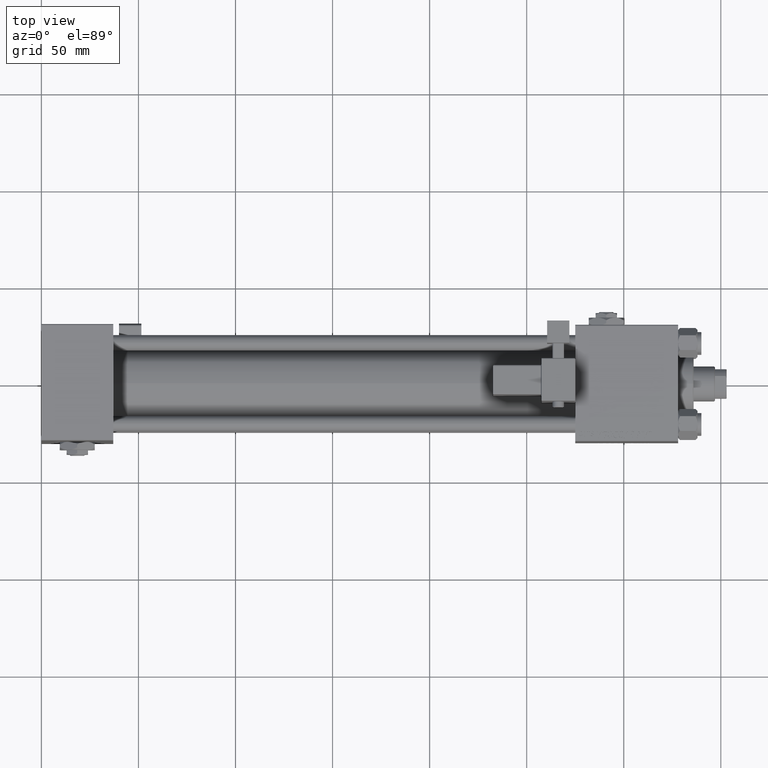
[diagram: clean part render]
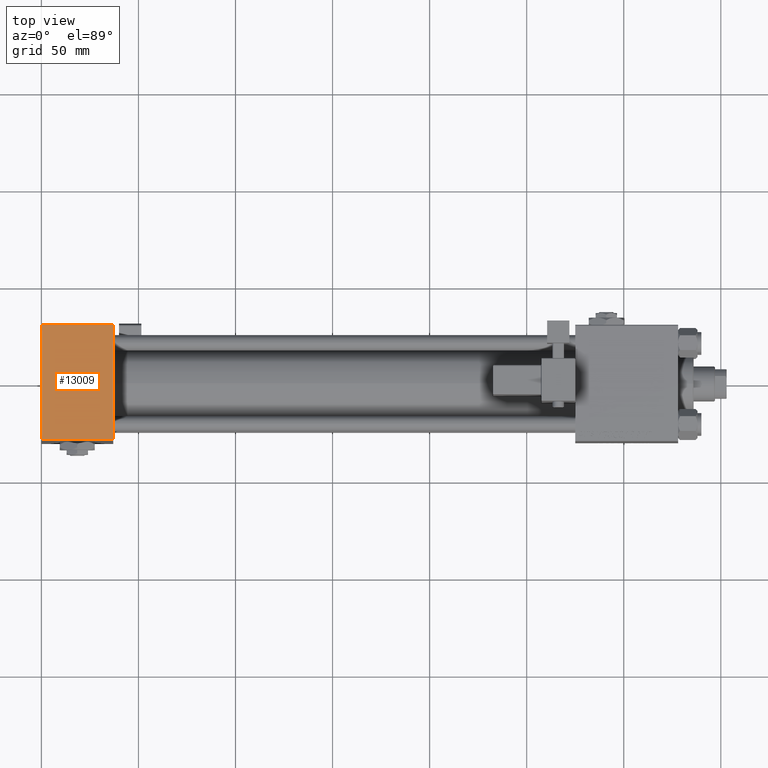
[diagram: same view with one face highlighted and labeled with its STEP entity id]
A machine part, top view. The second image highlights one B-rep face of the part: STEP entity #13009.
In plain terms, the highlighted planar face has unit normal (0, 0, -1).
Its self-contained STEP definition (entity closure, byte-faithful):
#951 = DIRECTION ( 'NONE',  ( 0.000000000000000000, -1.000000000000000000, -1.156482317317871478E-16 ) ) ;
#2306 = CARTESIAN_POINT ( 'NONE',  ( 37.00000000000000000, -29.50000000000000711, 54.50000000000000711 ) ) ;
#5377 = CARTESIAN_POINT ( 'NONE',  ( 0.000000000000000000, -29.50000000000000711, 54.50000000000000711 ) ) ;
#7962 = ORIENTED_EDGE ( 'NONE', *, *, #31420, .T. ) ;
#9850 = AXIS2_PLACEMENT_3D ( 'NONE', #14264, #26840, #47294 ) ;
#10174 = PLANE ( 'NONE',  #9850 ) ;
#13009 = ADVANCED_FACE ( 'NONE', ( #43734 ), #10174, .F. ) ;
#13513 = LINE ( 'NONE', #16809, #33509 ) ;
#14030 = VERTEX_POINT ( 'NONE', #28959 ) ;
#14264 = CARTESIAN_POINT ( 'NONE',  ( 37.00000000000000000, 30.00000000000000355, 54.50000000000001421 ) ) ;
#14610 = LINE ( 'NONE', #28003, #25199 ) ;
#15139 = VECTOR ( 'NONE', #48053, 1000.000000000000000 ) ;
#16809 = CARTESIAN_POINT ( 'NONE',  ( 37.00000000000000000, 30.00000000000000355, 54.50000000000001421 ) ) ;
#18435 = VERTEX_POINT ( 'NONE', #5377 ) ;
#19932 = ORIENTED_EDGE ( 'NONE', *, *, #44273, .T. ) ;
#22236 = EDGE_CURVE ( 'NONE', #18435, #22642, #32489, .T. ) ;
#22283 = VECTOR ( 'NONE', #23205, 1000.000000000000000 ) ;
#22642 = VERTEX_POINT ( 'NONE', #2306 ) ;
#23205 = DIRECTION ( 'NONE',  ( 1.000000000000000000, 0.000000000000000000, 0.000000000000000000 ) ) ;
#25199 = VECTOR ( 'NONE', #27174, 1000.000000000000000 ) ;
#26840 = DIRECTION ( 'NONE',  ( 0.000000000000000000, 1.156482317317871478E-16, -1.000000000000000000 ) ) ;
#27174 = DIRECTION ( 'NONE',  ( 0.000000000000000000, -1.000000000000000000, -1.156482317317871478E-16 ) ) ;
#28003 = CARTESIAN_POINT ( 'NONE',  ( 0.000000000000000000, 30.00000000000000355, 54.50000000000001421 ) ) ;
#28959 = CARTESIAN_POINT ( 'NONE',  ( 37.00000000000000000, 29.50000000000000355, 54.50000000000001421 ) ) ;
#29392 = EDGE_LOOP ( 'NONE', ( #7962, #37886, #48951, #19932 ) ) ;
#31420 = EDGE_CURVE ( 'NONE', #53768, #18435, #14610, .T. ) ;
#31971 = CARTESIAN_POINT ( 'NONE',  ( 0.000000000000000000, 29.50000000000000355, 54.50000000000001421 ) ) ;
#32489 = LINE ( 'NONE', #48854, #22283 ) ;
#33509 = VECTOR ( 'NONE', #951, 1000.000000000000000 ) ;
#35466 = CARTESIAN_POINT ( 'NONE',  ( 0.000000000000000000, 29.50000000000000355, 54.50000000000001421 ) ) ;
#37886 = ORIENTED_EDGE ( 'NONE', *, *, #22236, .T. ) ;
#39588 = LINE ( 'NONE', #31971, #15139 ) ;
#43734 = FACE_OUTER_BOUND ( 'NONE', #29392, .T. ) ;
#44273 = EDGE_CURVE ( 'NONE', #14030, #53768, #39588, .T. ) ;
#47294 = DIRECTION ( 'NONE',  ( 0.000000000000000000, 1.000000000000000000, 1.156482317317871478E-16 ) ) ;
#48053 = DIRECTION ( 'NONE',  ( -1.000000000000000000, 0.000000000000000000, 0.000000000000000000 ) ) ;
#48828 = EDGE_CURVE ( 'NONE', #14030, #22642, #13513, .T. ) ;
#48854 = CARTESIAN_POINT ( 'NONE',  ( 37.00000000000000000, -29.50000000000000711, 54.50000000000000711 ) ) ;
#48951 = ORIENTED_EDGE ( 'NONE', *, *, #48828, .F. ) ;
#53768 = VERTEX_POINT ( 'NONE', #35466 ) ;